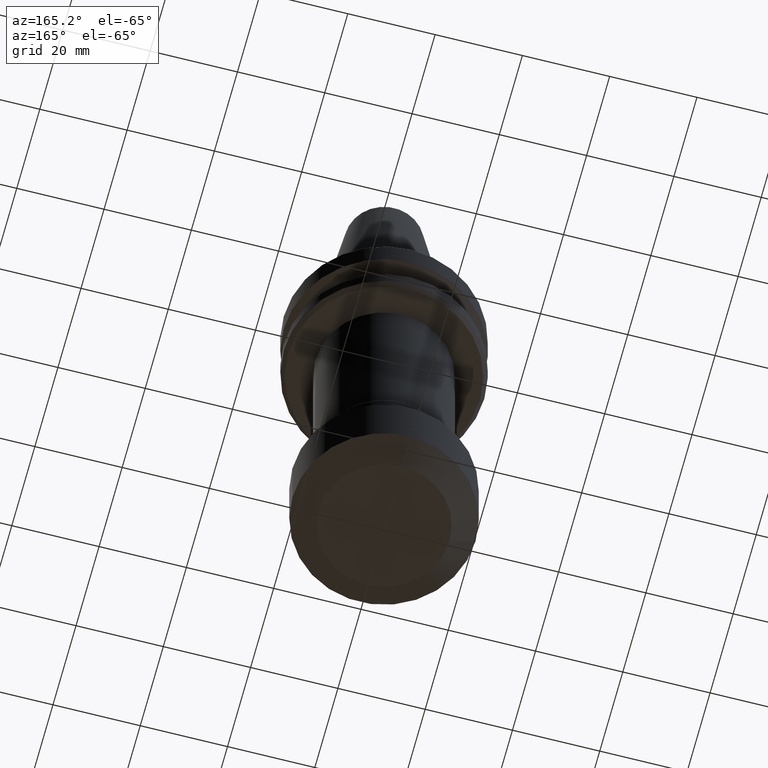
[diagram: clean part render]
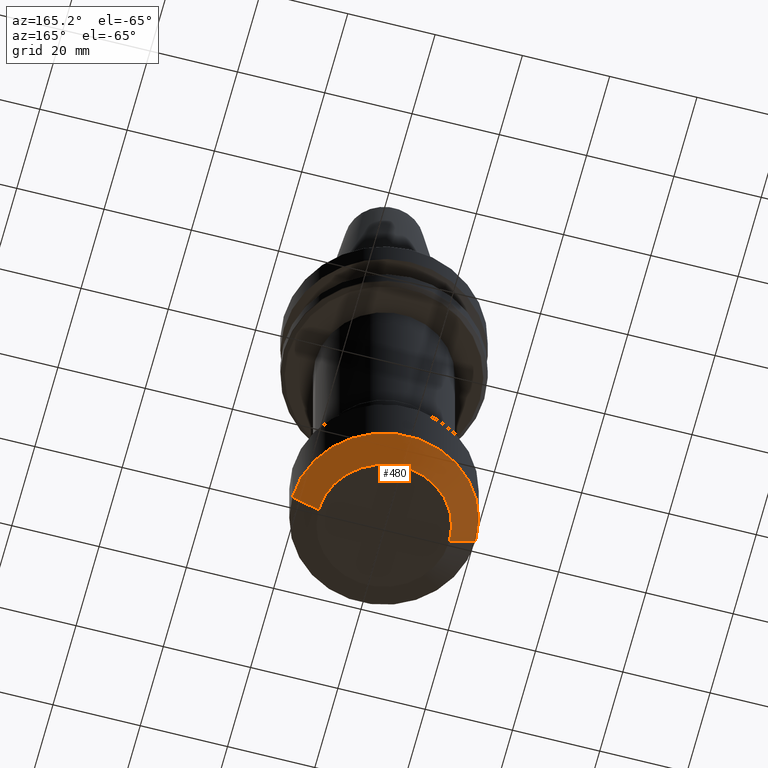
[diagram: same view with one face highlighted and labeled with its STEP entity id]
A machine part, auxiliary view. The second image highlights one B-rep face of the part: STEP entity #480.
In plain terms, the highlighted conical surface has half-angle 60 deg.
Its self-contained STEP definition (entity closure, byte-faithful):
#25 = VERTEX_POINT ( 'NONE', #582 ) ;
#32 = ORIENTED_EDGE ( 'NONE', *, *, #319, .T. ) ;
#57 = CARTESIAN_POINT ( 'NONE',  ( 0.0000000000000000000, 0.0000000000000000000, -99.99824683747608800 ) ) ;
#153 = AXIS2_PLACEMENT_3D ( 'NONE', #458, #1240, #578 ) ;
#155 = DIRECTION ( 'NONE',  ( -0.0000000000000000000, -0.0000000000000000000, 1.000000000000000000 ) ) ;
#160 = CARTESIAN_POINT ( 'NONE',  ( 15.00000000001641000, 0.0000000000000000000, -99.99824683747608800 ) ) ;
#193 = CARTESIAN_POINT ( 'NONE',  ( 15.00000000001641000, 0.0000000000000000000, -99.99824683747608800 ) ) ;
#204 = VERTEX_POINT ( 'NONE', #266 ) ;
#266 = CARTESIAN_POINT ( 'NONE',  ( -15.00000000001641000, 2.204364238466240000E-015, -99.99824683747608800 ) ) ;
#269 = VECTOR ( 'NONE', #1213, 1000.000000000000000 ) ;
#271 = DIRECTION ( 'NONE',  ( -0.8660254037844383700, 1.060575238724906500E-016, 0.5000000000000004400 ) ) ;
#289 = AXIS2_PLACEMENT_3D ( 'NONE', #57, #155, #1375 ) ;
#319 = EDGE_CURVE ( 'NONE', #204, #612, #332, .T. ) ;
#332 = LINE ( 'NONE', #1103, #930 ) ;
#350 = AXIS2_PLACEMENT_3D ( 'NONE', #561, #1327, #674 ) ;
#373 = EDGE_LOOP ( 'NONE', ( #1067, #32, #680, #1095 ) ) ;
#397 = CONICAL_SURFACE ( 'NONE', #289, 15.00000000001641000, 1.047197551196597200 ) ;
#435 = FACE_OUTER_BOUND ( 'NONE', #373, .T. ) ;
#445 = CIRCLE ( 'NONE', #153, 15.00000000001641000 ) ;
#458 = CARTESIAN_POINT ( 'NONE',  ( 0.0000000000000000000, 0.0000000000000000000, -99.99824683747608800 ) ) ;
#480 = ADVANCED_FACE ( 'NONE', ( #435 ), #397, .T. ) ;
#561 = CARTESIAN_POINT ( 'NONE',  ( 0.0000000000000000000, 0.0000000000000000000, -96.53414522234780300 ) ) ;
#578 = DIRECTION ( 'NONE',  ( 1.000000000000000000, 0.0000000000000000000, 0.0000000000000000000 ) ) ;
#582 = CARTESIAN_POINT ( 'NONE',  ( 20.99999999999998900, 0.0000000000000000000, -96.53414522234780300 ) ) ;
#597 = VERTEX_POINT ( 'NONE', #160 ) ;
#612 = VERTEX_POINT ( 'NONE', #634 ) ;
#634 = CARTESIAN_POINT ( 'NONE',  ( -20.99999999999998900, 2.571758278209440500E-015, -96.53414522234780300 ) ) ;
#674 = DIRECTION ( 'NONE',  ( 1.000000000000000000, 0.0000000000000000000, 0.0000000000000000000 ) ) ;
#680 = ORIENTED_EDGE ( 'NONE', *, *, #1330, .F. ) ;
#930 = VECTOR ( 'NONE', #271, 1000.000000000000000 ) ;
#952 = EDGE_CURVE ( 'NONE', #597, #204, #445, .T. ) ;
#1050 = EDGE_CURVE ( 'NONE', #597, #25, #1135, .T. ) ;
#1067 = ORIENTED_EDGE ( 'NONE', *, *, #952, .T. ) ;
#1095 = ORIENTED_EDGE ( 'NONE', *, *, #1050, .F. ) ;
#1103 = CARTESIAN_POINT ( 'NONE',  ( -15.00000000001641000, 1.836970198723039600E-015, -99.99824683747608800 ) ) ;
#1119 = CIRCLE ( 'NONE', #350, 20.99999999999998900 ) ;
#1135 = LINE ( 'NONE', #193, #269 ) ;
#1213 = DIRECTION ( 'NONE',  ( 0.8660254037844383700, 0.0000000000000000000, 0.5000000000000004400 ) ) ;
#1240 = DIRECTION ( 'NONE',  ( -0.0000000000000000000, -0.0000000000000000000, 1.000000000000000000 ) ) ;
#1327 = DIRECTION ( 'NONE',  ( -0.0000000000000000000, -0.0000000000000000000, 1.000000000000000000 ) ) ;
#1330 = EDGE_CURVE ( 'NONE', #25, #612, #1119, .T. ) ;
#1375 = DIRECTION ( 'NONE',  ( 1.000000000000000000, 0.0000000000000000000, 0.0000000000000000000 ) ) ;